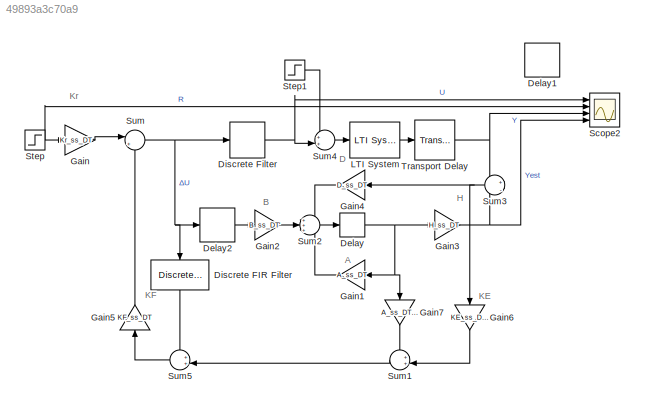
MODEL slx_49893a3c70a9
KIND model
CONFIG AbsTol = auto
CONFIG EnableMultiTasking = off
CONFIG FixedStep = auto
CONFIG MaxStep = auto
CONFIG MinStep = auto
CONFIG RelTol = 1e-3
CONFIG SampleTimeConstraint = Unconstrained
CONFIG SolverName = VariableStepAuto
CONFIG StartTime = 0.0
CONFIG StopTime = 70
BLOCK [Delay] Delay
  DelayLength = 1
  InitialCondition = [0 0]
  InputPortMap = u0
  Ports = [1, 1]
BLOCK [Delay] Delay1
  Commented = on
  DelayLength = DT_3
  InputPortMap = u0
  Ports = [1, 1]
BLOCK [Delay] Delay2
  DelayLength = DT_3
  InputPortMap = u0
  Ports = [1, 1]
BLOCK [DiscreteFir] Discrete FIR Filter
  Coefficients = FIR
  InputPortMap = u0
  NameLocation = left
  OutputPortMap = o0
  Ports = [1, 1]
BLOCK [DiscreteFilter] Discrete Filter
  Denominator = [1 -1]
  FilterStructure = Direct form I
  InputPortMap = u0
  Ports = [1, 1]
BLOCK [Gain] Gain
  Gain = Kr_ss_DT
BLOCK [Gain] Gain1
  Gain = A_ss_DT
  Multiplication = Matrix(K*u)
  NameLocation = top
BLOCK [Gain] Gain2
  Gain = B_ss_DT'
  Multiplication = Matrix(K*u)
BLOCK [Gain] Gain3
  Gain = H_ss_DT
  Multiplication = Matrix(K*u)
BLOCK [Gain] Gain4
  Gain = D_ss_DT
  Multiplication = Matrix(K*u)
  NameLocation = top
BLOCK [Gain] Gain5
  Gain = KF_ss_DT
  Multiplication = Matrix(K*u)
  NameLocation = right
BLOCK [Gain] Gain6
  Gain = KE_ss_DT^(DT_3-1)*D_ss_DT
  Multiplication = Matrix(K*u)
  NameLocation = left
BLOCK [Gain] Gain7
  Gain = A_ss_DT^DT_3
  Multiplication = Matrix(K*u)
  NameLocation = left
BLOCK [Reference] LTI System  REF=cstblocks/LTI System
  Ports = [1, 1]
  SourceBlock = cstblocks/LTI System
  SourceProductBaseCode = CT
  SourceType = LTI Block
BLOCK [Scope] Scope2
  Floating = off
  NumInputPorts = 4
  Ports = [4]
  ScopeSpecificationString = Simulink.scopes.TimeScopeBlockCfg('CurrentConfiguration', extmgr.ConfigurationSet(extmgr.Configuration('Core','General UI',true,'FigureColor',[1 1 1]),extmgr.Configuration('Core','Source UI',true),extmgr.Configuration('Sources','WiredSimulink',true,'DataLoggingVariableName','ScopeData1'),extmgr.Configuration('Visuals','Time Domain',true,'SerializedDisplays',{struct('MinYLimReal','-0.26036','MaxYLi...<+1916ch>
BLOCK [Step] Step
  SampleTime = 1
BLOCK [Step] Step1
  SampleTime = 0
  Time = 25
BLOCK [Sum] Sum
  Inputs = |+-
  Ports = [2, 1]
BLOCK [Sum] Sum1
  Inputs = ++|
  NameLocation = top
  Ports = [2, 1]
BLOCK [Sum] Sum2
  Inputs = +++
  Ports = [3, 1]
BLOCK [Sum] Sum3
  Inputs = +|-
  NameLocation = top
  Ports = [2, 1]
BLOCK [Sum] Sum4
  Inputs = ++|
  Ports = [2, 1]
BLOCK [Sum] Sum5
  Inputs = ++|
  NameLocation = top
  Ports = [2, 1]
BLOCK [TransportDelay] Transport Delay
  DelayTime = DT_3
  Ports = [1, 1]
ANNOTATION (root): A
ANNOTATION (root): D
ANNOTATION (root): B
ANNOTATION (root): H
ANNOTATION (root): K E
ANNOTATION (root): K F
ANNOTATION (root): K r
LINE Delay2:1 -> Gain2:1
NET Delay:1 -> Gain1:1, Gain3:1, Gain7:1
LINE Discrete FIR Filter:1 -> Sum5:1
NET Discrete Filter:1 -> Scope2:1, Sum4:2
LINE Gain1:1 -> Sum2:3
LINE Gain2:1 -> Sum2:2
NET Gain3:1 -> Scope2:4, Sum3:2
LINE Gain4:1 -> Sum2:1
LINE Gain5:1 -> Sum:2
LINE Gain6:1 -> Sum1:2
LINE Gain7:1 -> Sum1:1
LINE Gain:1 -> Sum:1
LINE LTI System:1 -> Transport Delay:1
LINE Step1:1 -> Sum4:1
NET Step:1 -> Gain:1, Scope2:2
LINE Sum1:1 -> Sum5:2
LINE Sum2:1 -> Delay:1
NET Sum3:1 -> Gain4:1, Gain6:1
LINE Sum4:1 -> LTI System:1
LINE Sum5:1 -> Gain5:1
NET Sum:1 -> Delay2:1, Discrete FIR Filter:1, Discrete Filter:1
NET Transport Delay:1 -> Scope2:3, Sum3:1
note: NET lines group one-source signal fan-out (src -> all destinations, sorted); 1:1 wires keep LINE
